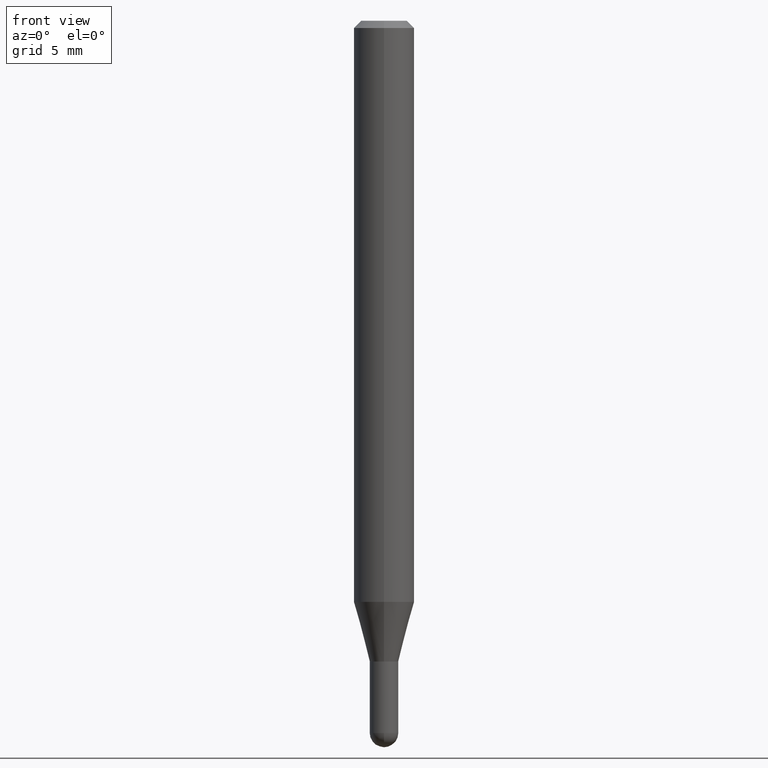
[diagram: clean part render]
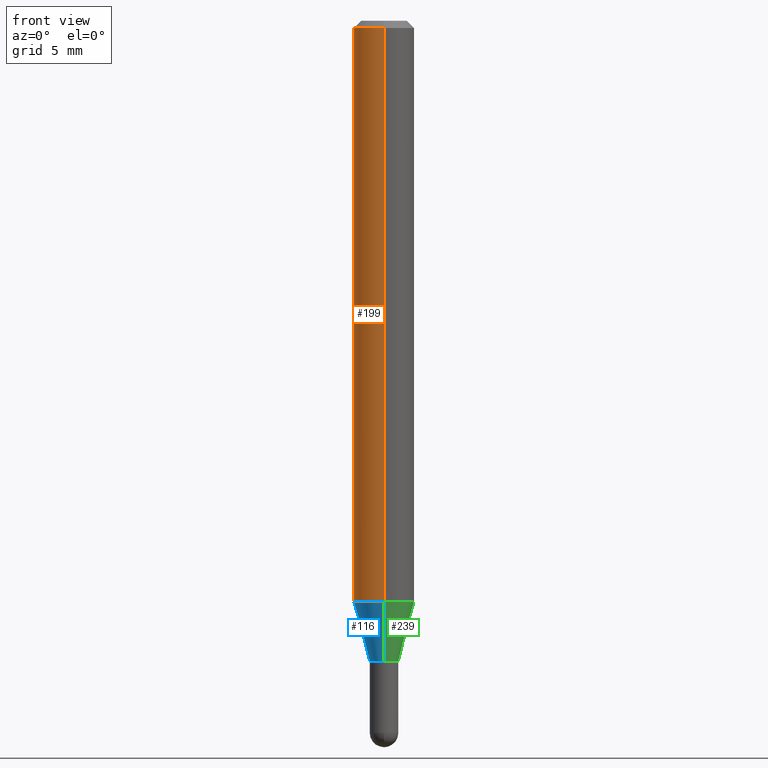
[diagram: same view with three faces highlighted in distinct colors, each labeled with its STEP entity id]
A machine part, front view with three faces highlighted in distinct colors.
Their STEP definitions:

[orange] entity #199 — the highlighted cylindrical surface (edge-blend (fillet) strip) has radius 1.5875 mm, axis along (-0, 0, 1).
#6 = CARTESIAN_POINT ( 'NONE',  ( -4.364351673553912750E-16, -0.06250000000000005551, -0.01499999999999979128 ) ) ;
#18 = DIRECTION ( 'NONE',  ( -2.445485998006059761E-29, 3.491456719177085880E-15, 1.000000000000000000 ) ) ;
#25 = LINE ( 'NONE', #91, #141 ) ;
#53 = VERTEX_POINT ( 'NONE', #6 ) ;
#54 = CARTESIAN_POINT ( 'NONE',  ( 4.440892098500917054E-16, 0.06249999999999578115, -1.199842323350231998 ) ) ;
#65 = CARTESIAN_POINT ( 'NONE',  ( 4.440892098500920998E-16, 0.06249999999999995143, -0.01500000000000022669 ) ) ;
#73 = DIRECTION ( 'NONE',  ( -6.982962677686265922E-15, -1.000000000000000000, 3.483106191921935554E-15 ) ) ;
#86 = ORIENTED_EDGE ( 'NONE', *, *, #364, .T. ) ;
#91 = CARTESIAN_POINT ( 'NONE',  ( 4.440892098500625669E-16, 0.06250000000000000000, -2.182160449485678675E-16 ) ) ;
#110 = CARTESIAN_POINT ( 'NONE',  ( 2.934197601568051168E-29, -4.189197541814212806E-15, -1.199842323350231776 ) ) ;
#114 = EDGE_LOOP ( 'NONE', ( #389, #181, #86, #390 ) ) ;
#136 = VERTEX_POINT ( 'NONE', #54 ) ;
#141 = VECTOR ( 'NONE', #493, 39.37007874015748143 ) ;
#143 = DIRECTION ( 'NONE',  ( -2.445485998006059761E-29, 3.491456719177085880E-15, 1.000000000000000000 ) ) ;
#176 = CYLINDRICAL_SURFACE ( 'NONE', #432, 0.06250000000000000000 ) ;
#181 = ORIENTED_EDGE ( 'NONE', *, *, #287, .T. ) ;
#199 = ADVANCED_FACE ( 'NONE', ( #406 ), #176, .T. ) ;
#212 = CIRCLE ( 'NONE', #399, 0.06250000000000000000 ) ;
#228 = CARTESIAN_POINT ( 'NONE',  ( 3.668228997009091848E-31, -5.237185078765632149E-17, -0.01500000000000000812 ) ) ;
#233 = CIRCLE ( 'NONE', #241, 0.06250000000000000000 ) ;
#241 = AXIS2_PLACEMENT_3D ( 'NONE', #228, #396, #73 ) ;
#252 = VERTEX_POINT ( 'NONE', #267 ) ;
#259 = DIRECTION ( 'NONE',  ( -2.445485998006060041E-29, 3.491456719177085486E-15, 1.000000000000000000 ) ) ;
#261 = CARTESIAN_POINT ( 'NONE',  ( 0.000000000000000000, 0.000000000000000000, 0.000000000000000000 ) ) ;
#267 = CARTESIAN_POINT ( 'NONE',  ( -4.364351673553624323E-16, -0.06250000000000421885, -1.199842323350231554 ) ) ;
#287 = EDGE_CURVE ( 'NONE', #136, #252, #212, .T. ) ;
#312 = DIRECTION ( 'NONE',  ( -6.982962677686265922E-15, -1.000000000000000000, 4.370956789862821150E-15 ) ) ;
#318 = VERTEX_POINT ( 'NONE', #65 ) ;
#327 = VECTOR ( 'NONE', #259, 39.37007874015748143 ) ;
#329 = LINE ( 'NONE', #349, #327 ) ;
#338 = DIRECTION ( 'NONE',  ( -6.982962677686265922E-15, -1.000000000000000000, 3.491456719177085880E-15 ) ) ;
#349 = CARTESIAN_POINT ( 'NONE',  ( -4.364351673553916201E-16, -0.06250000000000000000, 2.182160449485678675E-16 ) ) ;
#364 = EDGE_CURVE ( 'NONE', #252, #53, #329, .T. ) ;
#389 = ORIENTED_EDGE ( 'NONE', *, *, #503, .F. ) ;
#390 = ORIENTED_EDGE ( 'NONE', *, *, #461, .F. ) ;
#396 = DIRECTION ( 'NONE',  ( -2.445485998006059761E-29, 3.491456719177085880E-15, 1.000000000000000000 ) ) ;
#399 = AXIS2_PLACEMENT_3D ( 'NONE', #110, #143, #312 ) ;
#406 = FACE_OUTER_BOUND ( 'NONE', #114, .T. ) ;
#432 = AXIS2_PLACEMENT_3D ( 'NONE', #261, #18, #338 ) ;
#461 = EDGE_CURVE ( 'NONE', #318, #53, #233, .T. ) ;
#493 = DIRECTION ( 'NONE',  ( -2.445485998006060041E-29, 3.491456719177085486E-15, 1.000000000000000000 ) ) ;
#503 = EDGE_CURVE ( 'NONE', #136, #318, #25, .T. ) ;

[blue] entity #116 — the highlighted conical surface has half-angle 15 deg.
#15 = DIRECTION ( 'NONE',  ( -2.445485998006059761E-29, 3.491456719177085880E-15, 1.000000000000000000 ) ) ;
#37 = CARTESIAN_POINT ( 'NONE',  ( -2.059973989917138785E-16, -0.02950000000000481751, -1.323000000000000176 ) ) ;
#39 = ORIENTED_EDGE ( 'NONE', *, *, #89, .F. ) ;
#42 = DIRECTION ( 'NONE',  ( -1.807323732225379049E-15, -0.2588190451025252359, 0.9659258262890670910 ) ) ;
#46 = DIRECTION ( 'NONE',  ( -2.445485998006059761E-29, 3.491456719177085880E-15, 1.000000000000000000 ) ) ;
#48 = VERTEX_POINT ( 'NONE', #37 ) ;
#54 = CARTESIAN_POINT ( 'NONE',  ( 4.440892098500917054E-16, 0.06249999999999578115, -1.199842323350231998 ) ) ;
#75 = CARTESIAN_POINT ( 'NONE',  ( -2.059973989917138785E-16, -0.02950000000000481751, -1.323000000000000176 ) ) ;
#89 = EDGE_CURVE ( 'NONE', #467, #136, #223, .T. ) ;
#110 = CARTESIAN_POINT ( 'NONE',  ( 2.934197601568051168E-29, -4.189197541814212806E-15, -1.199842323350231776 ) ) ;
#116 = ADVANCED_FACE ( 'NONE', ( #129 ), #398, .T. ) ;
#129 = FACE_OUTER_BOUND ( 'NONE', #342, .T. ) ;
#136 = VERTEX_POINT ( 'NONE', #54 ) ;
#142 = CARTESIAN_POINT ( 'NONE',  ( 3.235377975362016805E-29, -4.619197239471284421E-15, -1.323000000000000176 ) ) ;
#143 = DIRECTION ( 'NONE',  ( -2.445485998006059761E-29, 3.491456719177085880E-15, 1.000000000000000000 ) ) ;
#153 = EDGE_CURVE ( 'NONE', #467, #48, #302, .T. ) ;
#173 = AXIS2_PLACEMENT_3D ( 'NONE', #142, #15, #368 ) ;
#212 = CIRCLE ( 'NONE', #399, 0.06250000000000000000 ) ;
#223 = LINE ( 'NONE', #449, #391 ) ;
#237 = LINE ( 'NONE', #75, #392 ) ;
#238 = CARTESIAN_POINT ( 'NONE',  ( 3.235377975362016805E-29, -4.619197239471284421E-15, -1.323000000000000176 ) ) ;
#243 = DIRECTION ( 'NONE',  ( -6.982962677686265922E-15, -1.000000000000000000, 0.000000000000000000 ) ) ;
#252 = VERTEX_POINT ( 'NONE', #267 ) ;
#263 = ORIENTED_EDGE ( 'NONE', *, *, #287, .F. ) ;
#267 = CARTESIAN_POINT ( 'NONE',  ( -4.364351673553624323E-16, -0.06250000000000421885, -1.199842323350231554 ) ) ;
#274 = ORIENTED_EDGE ( 'NONE', *, *, #153, .T. ) ;
#287 = EDGE_CURVE ( 'NONE', #136, #252, #212, .T. ) ;
#302 = CIRCLE ( 'NONE', #173, 0.02950000000000019967 ) ;
#312 = DIRECTION ( 'NONE',  ( -6.982962677686265922E-15, -1.000000000000000000, 4.370956789862821150E-15 ) ) ;
#342 = EDGE_LOOP ( 'NONE', ( #39, #274, #356, #263 ) ) ;
#356 = ORIENTED_EDGE ( 'NONE', *, *, #447, .T. ) ;
#368 = DIRECTION ( 'NONE',  ( -6.982962677686265922E-15, -1.000000000000000000, 0.000000000000000000 ) ) ;
#391 = VECTOR ( 'NONE', #480, 39.37007874015748854 ) ;
#392 = VECTOR ( 'NONE', #42, 39.37007874015748854 ) ;
#393 = CARTESIAN_POINT ( 'NONE',  ( 3.268496584496776837E-16, 0.02949999999999558184, -1.323000000000000176 ) ) ;
#398 = CONICAL_SURFACE ( 'NONE', #415, 0.02950000000000019967, 0.2617993877991575125 ) ;
#399 = AXIS2_PLACEMENT_3D ( 'NONE', #110, #143, #312 ) ;
#415 = AXIS2_PLACEMENT_3D ( 'NONE', #238, #46, #243 ) ;
#447 = EDGE_CURVE ( 'NONE', #48, #252, #237, .T. ) ;
#449 = CARTESIAN_POINT ( 'NONE',  ( 2.096101070492632922E-16, 0.02949999999999558184, -1.323000000000000176 ) ) ;
#467 = VERTEX_POINT ( 'NONE', #393 ) ;
#480 = DIRECTION ( 'NONE',  ( 1.839019923739649619E-15, 0.2588190451025318972, 0.9659258262890650926 ) ) ;

[green] entity #239 — the highlighted conical surface has half-angle 15 deg.
#21 = DIRECTION ( 'NONE',  ( -6.982962677686265922E-15, -1.000000000000000000, 0.000000000000000000 ) ) ;
#23 = ORIENTED_EDGE ( 'NONE', *, *, #447, .F. ) ;
#32 = EDGE_LOOP ( 'NONE', ( #194, #495, #363, #23 ) ) ;
#37 = CARTESIAN_POINT ( 'NONE',  ( -2.059973989917138785E-16, -0.02950000000000481751, -1.323000000000000176 ) ) ;
#42 = DIRECTION ( 'NONE',  ( -1.807323732225379049E-15, -0.2588190451025252359, 0.9659258262890670910 ) ) ;
#48 = VERTEX_POINT ( 'NONE', #37 ) ;
#52 = DIRECTION ( 'NONE',  ( -2.445485998006059761E-29, 3.491456719177085880E-15, 1.000000000000000000 ) ) ;
#54 = CARTESIAN_POINT ( 'NONE',  ( 4.440892098500917054E-16, 0.06249999999999578115, -1.199842323350231998 ) ) ;
#75 = CARTESIAN_POINT ( 'NONE',  ( -2.059973989917138785E-16, -0.02950000000000481751, -1.323000000000000176 ) ) ;
#89 = EDGE_CURVE ( 'NONE', #467, #136, #223, .T. ) ;
#99 = DIRECTION ( 'NONE',  ( -6.982962677686265922E-15, -1.000000000000000000, 0.000000000000000000 ) ) ;
#131 = DIRECTION ( 'NONE',  ( -6.982962677686265922E-15, -1.000000000000000000, 4.370956789862821150E-15 ) ) ;
#136 = VERTEX_POINT ( 'NONE', #54 ) ;
#150 = AXIS2_PLACEMENT_3D ( 'NONE', #365, #52, #99 ) ;
#168 = DIRECTION ( 'NONE',  ( -2.445485998006059761E-29, 3.491456719177085880E-15, 1.000000000000000000 ) ) ;
#194 = ORIENTED_EDGE ( 'NONE', *, *, #244, .T. ) ;
#202 = CIRCLE ( 'NONE', #150, 0.02950000000000019967 ) ;
#220 = CIRCLE ( 'NONE', #264, 0.06250000000000000000 ) ;
#223 = LINE ( 'NONE', #449, #391 ) ;
#237 = LINE ( 'NONE', #75, #392 ) ;
#239 = ADVANCED_FACE ( 'NONE', ( #249 ), #482, .T. ) ;
#244 = EDGE_CURVE ( 'NONE', #48, #467, #202, .T. ) ;
#249 = FACE_OUTER_BOUND ( 'NONE', #32, .T. ) ;
#252 = VERTEX_POINT ( 'NONE', #267 ) ;
#257 = EDGE_CURVE ( 'NONE', #252, #136, #220, .T. ) ;
#264 = AXIS2_PLACEMENT_3D ( 'NONE', #419, #168, #131 ) ;
#267 = CARTESIAN_POINT ( 'NONE',  ( -4.364351673553624323E-16, -0.06250000000000421885, -1.199842323350231554 ) ) ;
#307 = CARTESIAN_POINT ( 'NONE',  ( 3.235377975362016805E-29, -4.619197239471284421E-15, -1.323000000000000176 ) ) ;
#354 = AXIS2_PLACEMENT_3D ( 'NONE', #307, #456, #21 ) ;
#363 = ORIENTED_EDGE ( 'NONE', *, *, #257, .F. ) ;
#365 = CARTESIAN_POINT ( 'NONE',  ( 3.235377975362016805E-29, -4.619197239471284421E-15, -1.323000000000000176 ) ) ;
#391 = VECTOR ( 'NONE', #480, 39.37007874015748854 ) ;
#392 = VECTOR ( 'NONE', #42, 39.37007874015748854 ) ;
#393 = CARTESIAN_POINT ( 'NONE',  ( 3.268496584496776837E-16, 0.02949999999999558184, -1.323000000000000176 ) ) ;
#419 = CARTESIAN_POINT ( 'NONE',  ( 2.934197601568051168E-29, -4.189197541814212806E-15, -1.199842323350231776 ) ) ;
#447 = EDGE_CURVE ( 'NONE', #48, #252, #237, .T. ) ;
#449 = CARTESIAN_POINT ( 'NONE',  ( 2.096101070492632922E-16, 0.02949999999999558184, -1.323000000000000176 ) ) ;
#456 = DIRECTION ( 'NONE',  ( -2.445485998006059761E-29, 3.491456719177085880E-15, 1.000000000000000000 ) ) ;
#467 = VERTEX_POINT ( 'NONE', #393 ) ;
#480 = DIRECTION ( 'NONE',  ( 1.839019923739649619E-15, 0.2588190451025318972, 0.9659258262890650926 ) ) ;
#482 = CONICAL_SURFACE ( 'NONE', #354, 0.02950000000000019967, 0.2617993877991575125 ) ;
#495 = ORIENTED_EDGE ( 'NONE', *, *, #89, .T. ) ;